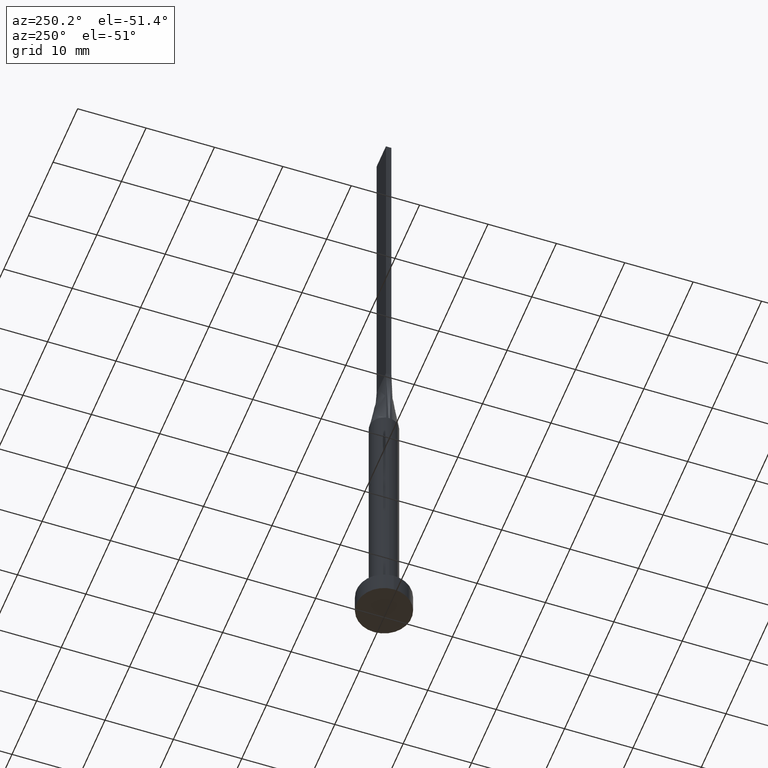
[diagram: clean part render]
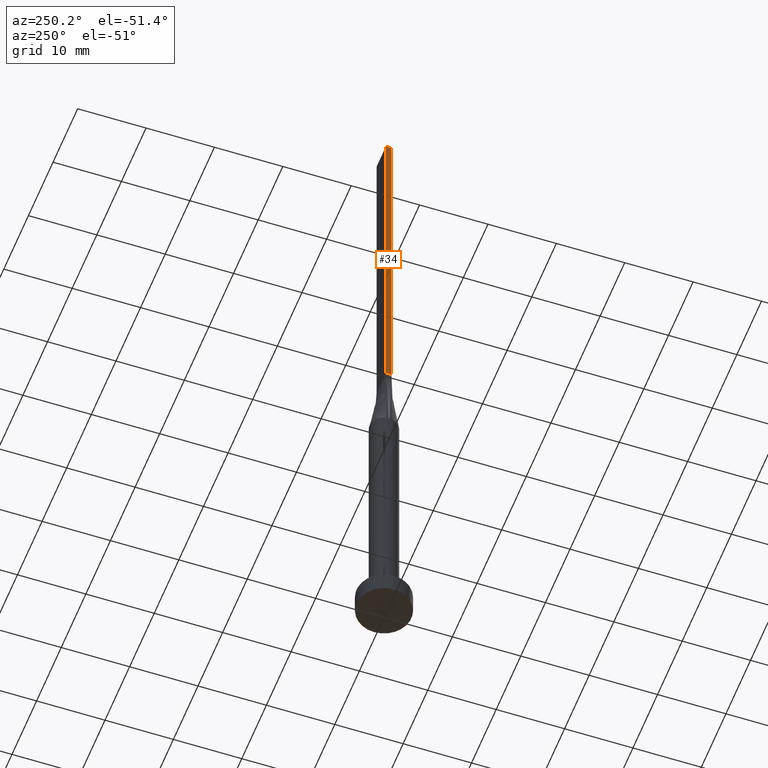
[diagram: same view with one face highlighted and labeled with its STEP entity id]
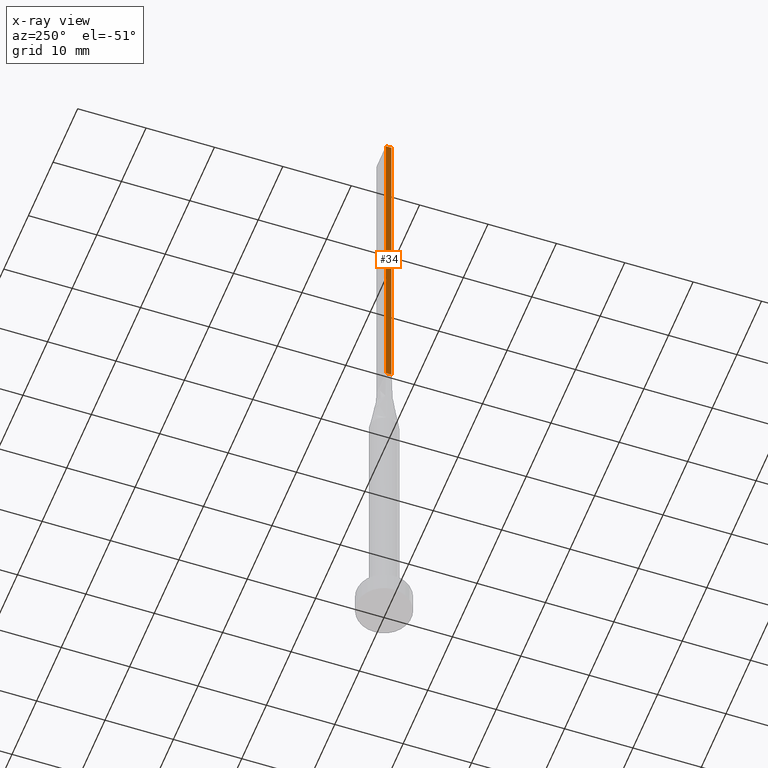
[diagram: x-ray of the same camera — body ghosted, the highlighted face saturated]
A machine part, auxiliary view. The second image highlights one B-rep face of the part: STEP entity #34.
The next image is the same camera in x-ray: the body ghosted, the highlighted face saturated — about 0% of this face is hidden behind the body in this view.
In plain terms, the highlighted planar face has unit normal (1, -0, 0).
Its self-contained STEP definition (entity closure, byte-faithful):
#7 = CARTESIAN_POINT ( 'NONE',  ( -1.899999999999999689, 0.4000000000000002442, 50.00000000000000000 ) ) ;
#34 = ADVANCED_FACE ( 'NONE', ( #301 ), #175, .F. ) ;
#42 = CARTESIAN_POINT ( 'NONE',  ( -1.899999999999999911, -0.3999999999999995781, 50.00000000000000000 ) ) ;
#60 = ORIENTED_EDGE ( 'NONE', *, *, #275, .T. ) ;
#83 = CARTESIAN_POINT ( 'NONE',  ( -1.899999999999999689, 0.4000000000000002442, 100.0000000000000000 ) ) ;
#87 = VECTOR ( 'NONE', #335, 1000.000000000000000 ) ;
#112 = LINE ( 'NONE', #242, #87 ) ;
#128 = VECTOR ( 'NONE', #379, 1000.000000000000000 ) ;
#130 = DIRECTION ( 'NONE',  ( -2.710505431213761578E-16, -1.000000000000000000, 0.000000000000000000 ) ) ;
#175 = PLANE ( 'NONE',  #293 ) ;
#183 = ORIENTED_EDGE ( 'NONE', *, *, #300, .F. ) ;
#202 = LINE ( 'NONE', #510, #554 ) ;
#215 = DIRECTION ( 'NONE',  ( 1.000000000000000000, -2.710505431213761578E-16, 0.000000000000000000 ) ) ;
#227 = VERTEX_POINT ( 'NONE', #280 ) ;
#228 = ORIENTED_EDGE ( 'NONE', *, *, #526, .F. ) ;
#234 = ORIENTED_EDGE ( 'NONE', *, *, #363, .T. ) ;
#242 = CARTESIAN_POINT ( 'NONE',  ( -1.899999999999999911, -0.3999999999999995781, 100.0000000000000000 ) ) ;
#275 = EDGE_CURVE ( 'NONE', #227, #444, #202, .T. ) ;
#280 = CARTESIAN_POINT ( 'NONE',  ( -1.899999999999999689, 0.4000000000000002442, 100.0000000000000000 ) ) ;
#284 = CARTESIAN_POINT ( 'NONE',  ( -1.899999999999999689, 0.4000000000000002442, 50.00000000000000000 ) ) ;
#293 = AXIS2_PLACEMENT_3D ( 'NONE', #524, #215, #469 ) ;
#300 = EDGE_CURVE ( 'NONE', #484, #463, #112, .T. ) ;
#301 = FACE_OUTER_BOUND ( 'NONE', #509, .T. ) ;
#335 = DIRECTION ( 'NONE',  ( -0.000000000000000000, -0.000000000000000000, -1.000000000000000000 ) ) ;
#363 = EDGE_CURVE ( 'NONE', #444, #463, #506, .T. ) ;
#379 = DIRECTION ( 'NONE',  ( -2.710505431213761578E-16, -1.000000000000000000, 0.000000000000000000 ) ) ;
#419 = DIRECTION ( 'NONE',  ( -0.000000000000000000, -0.000000000000000000, -1.000000000000000000 ) ) ;
#431 = LINE ( 'NONE', #83, #454 ) ;
#444 = VERTEX_POINT ( 'NONE', #7 ) ;
#454 = VECTOR ( 'NONE', #130, 1000.000000000000000 ) ;
#463 = VERTEX_POINT ( 'NONE', #42 ) ;
#469 = DIRECTION ( 'NONE',  ( 2.710505431213761578E-16, 1.000000000000000000, 0.000000000000000000 ) ) ;
#484 = VERTEX_POINT ( 'NONE', #580 ) ;
#506 = LINE ( 'NONE', #284, #128 ) ;
#509 = EDGE_LOOP ( 'NONE', ( #234, #183, #228, #60 ) ) ;
#510 = CARTESIAN_POINT ( 'NONE',  ( -1.899999999999999689, 0.4000000000000002442, 100.0000000000000000 ) ) ;
#524 = CARTESIAN_POINT ( 'NONE',  ( -1.899999999999999689, 0.4000000000000002442, 100.0000000000000000 ) ) ;
#526 = EDGE_CURVE ( 'NONE', #227, #484, #431, .T. ) ;
#554 = VECTOR ( 'NONE', #419, 1000.000000000000000 ) ;
#580 = CARTESIAN_POINT ( 'NONE',  ( -1.899999999999999911, -0.3999999999999995781, 100.0000000000000000 ) ) ;